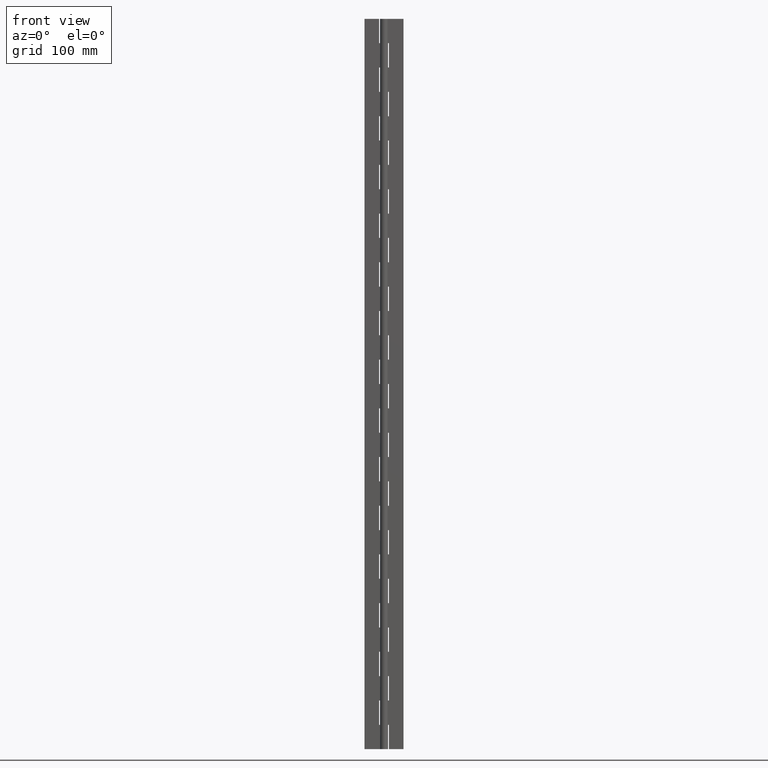
[diagram: clean part render]
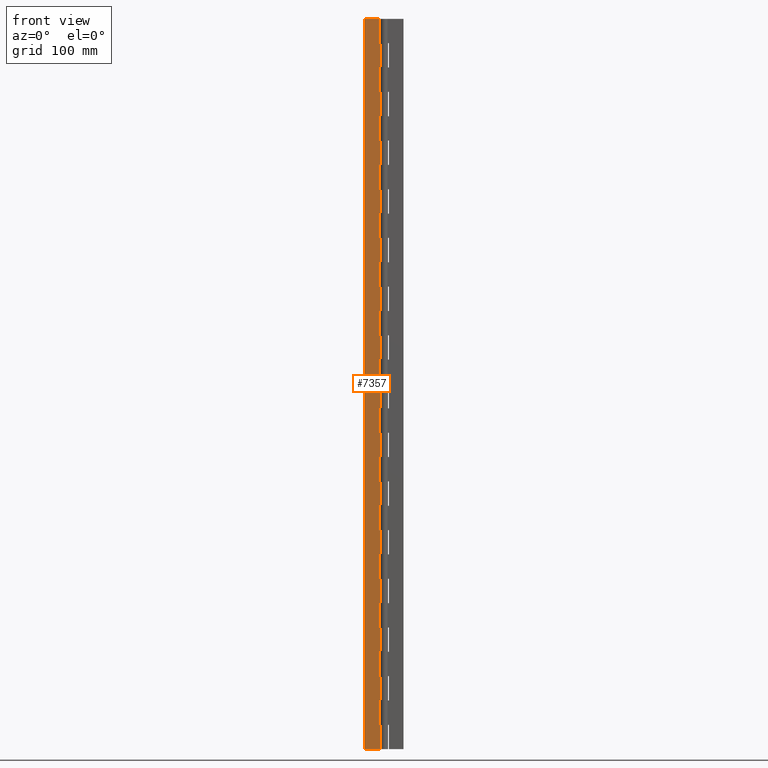
[diagram: same view with one face highlighted and labeled with its STEP entity id]
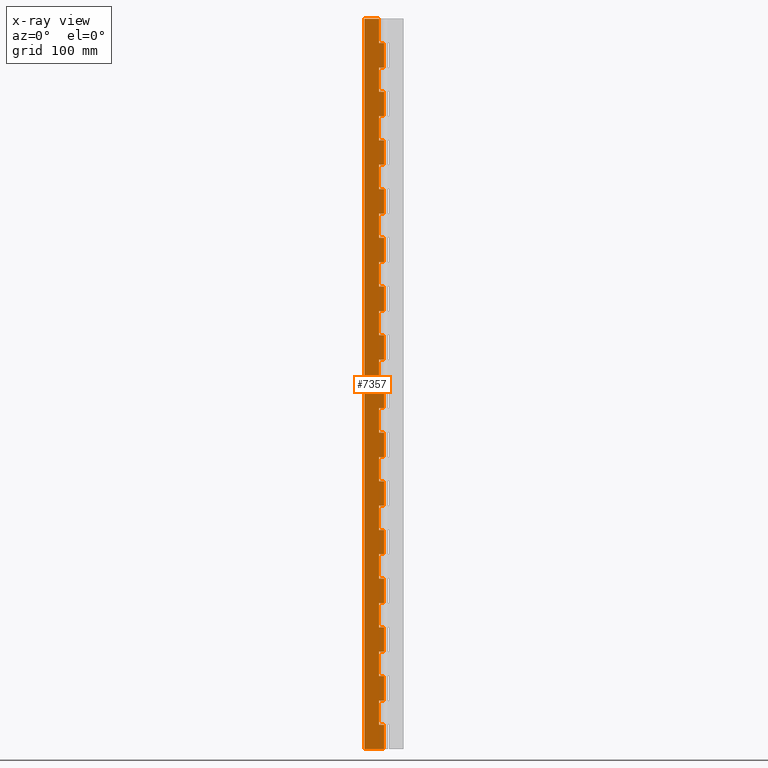
[diagram: x-ray of the same camera — body ghosted, the highlighted face saturated]
A machine part, front view. The second image highlights one B-rep face of the part: STEP entity #7357.
The next image is the same camera in x-ray: the body ghosted, the highlighted face saturated — about 0% of this face is hidden behind the body in this view.
In plain terms, the highlighted face is a freeform B-spline surface patch.
Its self-contained STEP definition (entity closure, byte-faithful):
#4497=CARTESIAN_POINT('',(-4.0,1.750000000000030,20.000021999999952));
#4498=VERTEX_POINT('',#4497);
#4504=CARTESIAN_POINT('',(0.0,1.750000000000000,20.000021999999952));
#4505=VERTEX_POINT('',#4504);
#4506=CARTESIAN_POINT('',(0.0,1.750000000000000,20.000021999999952));
#4507=CARTESIAN_POINT('',(-4.0,1.750000000000030,20.000021999999952));
#4508=QUASI_UNIFORM_CURVE('',1,(#4506,#4507),.UNSPECIFIED.,.F.,.U.);
#4509=EDGE_CURVE('',#4505,#4498,#4508,.T.);
#4575=CARTESIAN_POINT('',(0.0,1.750000000000000,40.000021999999952));
#4576=VERTEX_POINT('',#4575);
#4596=CARTESIAN_POINT('',(-4.0,1.750000000000030,40.000021999999952));
#4597=VERTEX_POINT('',#4596);
#4598=CARTESIAN_POINT('',(-4.0,1.750000000000030,40.000021999999952));
#4599=CARTESIAN_POINT('',(0.0,1.750000000000000,40.000021999999952));
#4600=QUASI_UNIFORM_CURVE('',1,(#4598,#4599),.UNSPECIFIED.,.F.,.U.);
#4601=EDGE_CURVE('',#4597,#4576,#4600,.T.);
#4630=CARTESIAN_POINT('',(-4.0,1.750000000000030,20.000021999999952));
#4631=CARTESIAN_POINT('',(-4.0,1.750000000000030,40.000021999999952));
#4632=QUASI_UNIFORM_CURVE('',1,(#4630,#4631),.UNSPECIFIED.,.F.,.U.);
#4633=EDGE_CURVE('',#4498,#4597,#4632,.T.);
#4673=CARTESIAN_POINT('',(-4.0,1.750000000000030,60.000022000000001));
#4674=VERTEX_POINT('',#4673);
#4680=CARTESIAN_POINT('',(0.0,1.750000000000000,60.000022000000001));
#4681=VERTEX_POINT('',#4680);
#4682=CARTESIAN_POINT('',(0.0,1.750000000000000,60.000022000000001));
#4683=CARTESIAN_POINT('',(-4.0,1.750000000000030,60.000022000000001));
#4684=QUASI_UNIFORM_CURVE('',1,(#4682,#4683),.UNSPECIFIED.,.F.,.U.);
#4685=EDGE_CURVE('',#4681,#4674,#4684,.T.);
#4751=CARTESIAN_POINT('',(0.0,1.750000000000000,80.000022000000001));
#4752=VERTEX_POINT('',#4751);
#4772=CARTESIAN_POINT('',(-4.0,1.750000000000030,80.000022000000001));
#4773=VERTEX_POINT('',#4772);
#4774=CARTESIAN_POINT('',(-4.0,1.750000000000030,80.000022000000001));
#4775=CARTESIAN_POINT('',(0.0,1.750000000000000,80.000022000000001));
#4776=QUASI_UNIFORM_CURVE('',1,(#4774,#4775),.UNSPECIFIED.,.F.,.U.);
#4777=EDGE_CURVE('',#4773,#4752,#4776,.T.);
#4806=CARTESIAN_POINT('',(-4.0,1.750000000000030,60.000022000000001));
#4807=CARTESIAN_POINT('',(-4.0,1.750000000000030,80.000022000000001));
#4808=QUASI_UNIFORM_CURVE('',1,(#4806,#4807),.UNSPECIFIED.,.F.,.U.);
#4809=EDGE_CURVE('',#4674,#4773,#4808,.T.);
#4849=CARTESIAN_POINT('',(-4.0,1.750000000000030,100.000022000000000));
#4850=VERTEX_POINT('',#4849);
#4856=CARTESIAN_POINT('',(0.0,1.750000000000000,100.000022000000000));
#4857=VERTEX_POINT('',#4856);
#4858=CARTESIAN_POINT('',(0.0,1.750000000000000,100.000022000000000));
#4859=CARTESIAN_POINT('',(-4.0,1.750000000000030,100.000022000000000));
#4860=QUASI_UNIFORM_CURVE('',1,(#4858,#4859),.UNSPECIFIED.,.F.,.U.);
#4861=EDGE_CURVE('',#4857,#4850,#4860,.T.);
#4927=CARTESIAN_POINT('',(0.0,1.750000000000000,120.000022000000000));
#4928=VERTEX_POINT('',#4927);
#4948=CARTESIAN_POINT('',(-4.0,1.750000000000030,120.000022000000000));
#4949=VERTEX_POINT('',#4948);
#4950=CARTESIAN_POINT('',(-4.0,1.750000000000030,120.000022000000000));
#4951=CARTESIAN_POINT('',(0.0,1.750000000000000,120.000022000000000));
#4952=QUASI_UNIFORM_CURVE('',1,(#4950,#4951),.UNSPECIFIED.,.F.,.U.);
#4953=EDGE_CURVE('',#4949,#4928,#4952,.T.);
#4982=CARTESIAN_POINT('',(-4.0,1.750000000000030,100.000022000000000));
#4983=CARTESIAN_POINT('',(-4.0,1.750000000000030,120.000022000000000));
#4984=QUASI_UNIFORM_CURVE('',1,(#4982,#4983),.UNSPECIFIED.,.F.,.U.);
#4985=EDGE_CURVE('',#4850,#4949,#4984,.T.);
#5025=CARTESIAN_POINT('',(-4.0,1.750000000000030,140.000022000000000));
#5026=VERTEX_POINT('',#5025);
#5032=CARTESIAN_POINT('',(0.0,1.750000000000000,140.000022000000000));
#5033=VERTEX_POINT('',#5032);
#5034=CARTESIAN_POINT('',(0.0,1.750000000000000,140.000022000000000));
#5035=CARTESIAN_POINT('',(-4.0,1.750000000000030,140.000022000000000));
#5036=QUASI_UNIFORM_CURVE('',1,(#5034,#5035),.UNSPECIFIED.,.F.,.U.);
#5037=EDGE_CURVE('',#5033,#5026,#5036,.T.);
#5103=CARTESIAN_POINT('',(0.0,1.750000000000000,160.000022000000000));
#5104=VERTEX_POINT('',#5103);
#5124=CARTESIAN_POINT('',(-4.0,1.750000000000030,160.000022000000000));
#5125=VERTEX_POINT('',#5124);
#5126=CARTESIAN_POINT('',(-4.0,1.750000000000030,160.000022000000000));
#5127=CARTESIAN_POINT('',(0.0,1.750000000000000,160.000022000000000));
#5128=QUASI_UNIFORM_CURVE('',1,(#5126,#5127),.UNSPECIFIED.,.F.,.U.);
#5129=EDGE_CURVE('',#5125,#5104,#5128,.T.);
#5158=CARTESIAN_POINT('',(-4.0,1.750000000000030,140.000022000000000));
#5159=CARTESIAN_POINT('',(-4.0,1.750000000000030,160.000022000000000));
#5160=QUASI_UNIFORM_CURVE('',1,(#5158,#5159),.UNSPECIFIED.,.F.,.U.);
#5161=EDGE_CURVE('',#5026,#5125,#5160,.T.);
#5201=CARTESIAN_POINT('',(-4.0,1.750000000000030,180.000022000000000));
#5202=VERTEX_POINT('',#5201);
#5208=CARTESIAN_POINT('',(0.0,1.750000000000000,180.000022000000000));
#5209=VERTEX_POINT('',#5208);
#5210=CARTESIAN_POINT('',(0.0,1.750000000000000,180.000022000000000));
#5211=CARTESIAN_POINT('',(-4.0,1.750000000000030,180.000022000000000));
#5212=QUASI_UNIFORM_CURVE('',1,(#5210,#5211),.UNSPECIFIED.,.F.,.U.);
#5213=EDGE_CURVE('',#5209,#5202,#5212,.T.);
#5279=CARTESIAN_POINT('',(0.0,1.750000000000000,200.000022000000000));
#5280=VERTEX_POINT('',#5279);
#5300=CARTESIAN_POINT('',(-4.0,1.750000000000030,200.000022000000000));
#5301=VERTEX_POINT('',#5300);
#5302=CARTESIAN_POINT('',(-4.0,1.750000000000030,200.000022000000000));
#5303=CARTESIAN_POINT('',(0.0,1.750000000000000,200.000022000000000));
#5304=QUASI_UNIFORM_CURVE('',1,(#5302,#5303),.UNSPECIFIED.,.F.,.U.);
#5305=EDGE_CURVE('',#5301,#5280,#5304,.T.);
#5334=CARTESIAN_POINT('',(-4.0,1.750000000000030,180.000022000000000));
#5335=CARTESIAN_POINT('',(-4.0,1.750000000000030,200.000022000000000));
#5336=QUASI_UNIFORM_CURVE('',1,(#5334,#5335),.UNSPECIFIED.,.F.,.U.);
#5337=EDGE_CURVE('',#5202,#5301,#5336,.T.);
#5377=CARTESIAN_POINT('',(-4.0,1.750000000000030,220.000022000000000));
#5378=VERTEX_POINT('',#5377);
#5384=CARTESIAN_POINT('',(0.0,1.750000000000000,220.000022000000000));
#5385=VERTEX_POINT('',#5384);
#5386=CARTESIAN_POINT('',(0.0,1.750000000000000,220.000022000000000));
#5387=CARTESIAN_POINT('',(-4.0,1.750000000000030,220.000022000000000));
#5388=QUASI_UNIFORM_CURVE('',1,(#5386,#5387),.UNSPECIFIED.,.F.,.U.);
#5389=EDGE_CURVE('',#5385,#5378,#5388,.T.);
#5455=CARTESIAN_POINT('',(0.0,1.750000000000000,240.000022000000000));
#5456=VERTEX_POINT('',#5455);
#5476=CARTESIAN_POINT('',(-4.0,1.750000000000030,240.000022000000000));
#5477=VERTEX_POINT('',#5476);
#5478=CARTESIAN_POINT('',(-4.0,1.750000000000030,240.000022000000000));
#5479=CARTESIAN_POINT('',(0.0,1.750000000000000,240.000022000000000));
#5480=QUASI_UNIFORM_CURVE('',1,(#5478,#5479),.UNSPECIFIED.,.F.,.U.);
#5481=EDGE_CURVE('',#5477,#5456,#5480,.T.);
#5510=CARTESIAN_POINT('',(-4.0,1.750000000000030,220.000022000000000));
#5511=CARTESIAN_POINT('',(-4.0,1.750000000000030,240.000022000000000));
#5512=QUASI_UNIFORM_CURVE('',1,(#5510,#5511),.UNSPECIFIED.,.F.,.U.);
#5513=EDGE_CURVE('',#5378,#5477,#5512,.T.);
#5553=CARTESIAN_POINT('',(-4.0,1.750000000000030,260.000022000000000));
#5554=VERTEX_POINT('',#5553);
#5560=CARTESIAN_POINT('',(0.0,1.750000000000000,260.000022000000000));
#5561=VERTEX_POINT('',#5560);
#5562=CARTESIAN_POINT('',(0.0,1.750000000000000,260.000022000000000));
#5563=CARTESIAN_POINT('',(-4.0,1.750000000000030,260.000022000000000));
#5564=QUASI_UNIFORM_CURVE('',1,(#5562,#5563),.UNSPECIFIED.,.F.,.U.);
#5565=EDGE_CURVE('',#5561,#5554,#5564,.T.);
#5631=CARTESIAN_POINT('',(0.0,1.750000000000000,280.000022000000000));
#5632=VERTEX_POINT('',#5631);
#5652=CARTESIAN_POINT('',(-4.0,1.750000000000030,280.000022000000000));
#5653=VERTEX_POINT('',#5652);
#5654=CARTESIAN_POINT('',(-4.0,1.750000000000030,280.000022000000000));
#5655=CARTESIAN_POINT('',(0.0,1.750000000000000,280.000022000000000));
#5656=QUASI_UNIFORM_CURVE('',1,(#5654,#5655),.UNSPECIFIED.,.F.,.U.);
#5657=EDGE_CURVE('',#5653,#5632,#5656,.T.);
#5686=CARTESIAN_POINT('',(-4.0,1.750000000000030,260.000022000000000));
#5687=CARTESIAN_POINT('',(-4.0,1.750000000000030,280.000022000000000));
#5688=QUASI_UNIFORM_CURVE('',1,(#5686,#5687),.UNSPECIFIED.,.F.,.U.);
#5689=EDGE_CURVE('',#5554,#5653,#5688,.T.);
#5729=CARTESIAN_POINT('',(-4.0,1.750000000000030,300.000022000000000));
#5730=VERTEX_POINT('',#5729);
#5736=CARTESIAN_POINT('',(0.0,1.750000000000000,300.000022000000000));
#5737=VERTEX_POINT('',#5736);
#5738=CARTESIAN_POINT('',(0.0,1.750000000000000,300.000022000000000));
#5739=CARTESIAN_POINT('',(-4.0,1.750000000000030,300.000022000000000));
#5740=QUASI_UNIFORM_CURVE('',1,(#5738,#5739),.UNSPECIFIED.,.F.,.U.);
#5741=EDGE_CURVE('',#5737,#5730,#5740,.T.);
#5807=CARTESIAN_POINT('',(0.0,1.750000000000000,320.000022000000000));
#5808=VERTEX_POINT('',#5807);
#5828=CARTESIAN_POINT('',(-4.0,1.750000000000030,320.000022000000000));
#5829=VERTEX_POINT('',#5828);
#5830=CARTESIAN_POINT('',(-4.0,1.750000000000030,320.000022000000000));
#5831=CARTESIAN_POINT('',(0.0,1.750000000000000,320.000022000000000));
#5832=QUASI_UNIFORM_CURVE('',1,(#5830,#5831),.UNSPECIFIED.,.F.,.U.);
#5833=EDGE_CURVE('',#5829,#5808,#5832,.T.);
#5862=CARTESIAN_POINT('',(-4.0,1.750000000000030,300.000022000000000));
#5863=CARTESIAN_POINT('',(-4.0,1.750000000000030,320.000022000000000));
#5864=QUASI_UNIFORM_CURVE('',1,(#5862,#5863),.UNSPECIFIED.,.F.,.U.);
#5865=EDGE_CURVE('',#5730,#5829,#5864,.T.);
#5905=CARTESIAN_POINT('',(-4.0,1.750000000000030,340.000022000000000));
#5906=VERTEX_POINT('',#5905);
#5912=CARTESIAN_POINT('',(0.0,1.750000000000000,340.000022000000000));
#5913=VERTEX_POINT('',#5912);
#5914=CARTESIAN_POINT('',(0.0,1.750000000000000,340.000022000000000));
#5915=CARTESIAN_POINT('',(-4.0,1.750000000000030,340.000022000000000));
#5916=QUASI_UNIFORM_CURVE('',1,(#5914,#5915),.UNSPECIFIED.,.F.,.U.);
#5917=EDGE_CURVE('',#5913,#5906,#5916,.T.);
#5983=CARTESIAN_POINT('',(0.0,1.750000000000000,360.000022000000000));
#5984=VERTEX_POINT('',#5983);
#6004=CARTESIAN_POINT('',(-4.0,1.750000000000030,360.000022000000000));
#6005=VERTEX_POINT('',#6004);
#6006=CARTESIAN_POINT('',(-4.0,1.750000000000030,360.000022000000000));
#6007=CARTESIAN_POINT('',(0.0,1.750000000000000,360.000022000000000));
#6008=QUASI_UNIFORM_CURVE('',1,(#6006,#6007),.UNSPECIFIED.,.F.,.U.);
#6009=EDGE_CURVE('',#6005,#5984,#6008,.T.);
#6038=CARTESIAN_POINT('',(-4.0,1.750000000000030,340.000022000000000));
#6039=CARTESIAN_POINT('',(-4.0,1.750000000000030,360.000022000000000));
#6040=QUASI_UNIFORM_CURVE('',1,(#6038,#6039),.UNSPECIFIED.,.F.,.U.);
#6041=EDGE_CURVE('',#5906,#6005,#6040,.T.);
#6081=CARTESIAN_POINT('',(-4.0,1.750000000000030,380.000022000000000));
#6082=VERTEX_POINT('',#6081);
#6088=CARTESIAN_POINT('',(0.0,1.750000000000000,380.000022000000000));
#6089=VERTEX_POINT('',#6088);
#6090=CARTESIAN_POINT('',(0.0,1.750000000000000,380.000022000000000));
#6091=CARTESIAN_POINT('',(-4.0,1.750000000000030,380.000022000000000));
#6092=QUASI_UNIFORM_CURVE('',1,(#6090,#6091),.UNSPECIFIED.,.F.,.U.);
#6093=EDGE_CURVE('',#6089,#6082,#6092,.T.);
#6159=CARTESIAN_POINT('',(0.0,1.750000000000000,400.000022000000000));
#6160=VERTEX_POINT('',#6159);
#6180=CARTESIAN_POINT('',(-4.0,1.750000000000030,400.000022000000000));
#6181=VERTEX_POINT('',#6180);
#6182=CARTESIAN_POINT('',(-4.0,1.750000000000030,400.000022000000000));
#6183=CARTESIAN_POINT('',(0.0,1.750000000000000,400.000022000000000));
#6184=QUASI_UNIFORM_CURVE('',1,(#6182,#6183),.UNSPECIFIED.,.F.,.U.);
#6185=EDGE_CURVE('',#6181,#6160,#6184,.T.);
#6214=CARTESIAN_POINT('',(-4.0,1.750000000000030,380.000022000000000));
#6215=CARTESIAN_POINT('',(-4.0,1.750000000000030,400.000022000000000));
#6216=QUASI_UNIFORM_CURVE('',1,(#6214,#6215),.UNSPECIFIED.,.F.,.U.);
#6217=EDGE_CURVE('',#6082,#6181,#6216,.T.);
#6257=CARTESIAN_POINT('',(-4.0,1.750000000000030,420.000021999999890));
#6258=VERTEX_POINT('',#6257);
#6264=CARTESIAN_POINT('',(0.0,1.750000000000000,420.000021999999890));
#6265=VERTEX_POINT('',#6264);
#6266=CARTESIAN_POINT('',(0.0,1.750000000000000,420.000021999999890));
#6267=CARTESIAN_POINT('',(-4.0,1.750000000000030,420.000021999999890));
#6268=QUASI_UNIFORM_CURVE('',1,(#6266,#6267),.UNSPECIFIED.,.F.,.U.);
#6269=EDGE_CURVE('',#6265,#6258,#6268,.T.);
#6335=CARTESIAN_POINT('',(0.0,1.750000000000000,440.000022000000000));
#6336=VERTEX_POINT('',#6335);
#6356=CARTESIAN_POINT('',(-4.0,1.750000000000030,440.000022000000000));
#6357=VERTEX_POINT('',#6356);
#6358=CARTESIAN_POINT('',(-4.0,1.750000000000030,440.000022000000000));
#6359=CARTESIAN_POINT('',(0.0,1.750000000000000,440.000022000000000));
#6360=QUASI_UNIFORM_CURVE('',1,(#6358,#6359),.UNSPECIFIED.,.F.,.U.);
#6361=EDGE_CURVE('',#6357,#6336,#6360,.T.);
#6390=CARTESIAN_POINT('',(-4.0,1.750000000000030,420.000021999999890));
#6391=CARTESIAN_POINT('',(-4.0,1.750000000000030,440.000022000000000));
#6392=QUASI_UNIFORM_CURVE('',1,(#6390,#6391),.UNSPECIFIED.,.F.,.U.);
#6393=EDGE_CURVE('',#6258,#6357,#6392,.T.);
#6433=CARTESIAN_POINT('',(-4.0,1.750000000000030,460.000022000000000));
#6434=VERTEX_POINT('',#6433);
#6440=CARTESIAN_POINT('',(0.0,1.750000000000000,460.000022000000000));
#6441=VERTEX_POINT('',#6440);
#6442=CARTESIAN_POINT('',(0.0,1.750000000000000,460.000022000000000));
#6443=CARTESIAN_POINT('',(-4.0,1.750000000000030,460.000022000000000));
#6444=QUASI_UNIFORM_CURVE('',1,(#6442,#6443),.UNSPECIFIED.,.F.,.U.);
#6445=EDGE_CURVE('',#6441,#6434,#6444,.T.);
#6511=CARTESIAN_POINT('',(0.0,1.750000000000000,480.000022000000000));
#6512=VERTEX_POINT('',#6511);
#6532=CARTESIAN_POINT('',(-4.0,1.750000000000030,480.000022000000000));
#6533=VERTEX_POINT('',#6532);
#6534=CARTESIAN_POINT('',(-4.0,1.750000000000030,480.000022000000000));
#6535=CARTESIAN_POINT('',(0.0,1.750000000000000,480.000022000000000));
#6536=QUASI_UNIFORM_CURVE('',1,(#6534,#6535),.UNSPECIFIED.,.F.,.U.);
#6537=EDGE_CURVE('',#6533,#6512,#6536,.T.);
#6566=CARTESIAN_POINT('',(-4.0,1.750000000000030,460.000022000000000));
#6567=CARTESIAN_POINT('',(-4.0,1.750000000000030,480.000022000000000));
#6568=QUASI_UNIFORM_CURVE('',1,(#6566,#6567),.UNSPECIFIED.,.F.,.U.);
#6569=EDGE_CURVE('',#6434,#6533,#6568,.T.);
#6609=CARTESIAN_POINT('',(-4.0,1.750000000000030,500.000022000000110));
#6610=VERTEX_POINT('',#6609);
#6616=CARTESIAN_POINT('',(0.0,1.750000000000000,500.000022000000110));
#6617=VERTEX_POINT('',#6616);
#6618=CARTESIAN_POINT('',(0.0,1.750000000000000,500.000022000000110));
#6619=CARTESIAN_POINT('',(-4.0,1.750000000000030,500.000022000000110));
#6620=QUASI_UNIFORM_CURVE('',1,(#6618,#6619),.UNSPECIFIED.,.F.,.U.);
#6621=EDGE_CURVE('',#6617,#6610,#6620,.T.);
#6687=CARTESIAN_POINT('',(0.0,1.750000000000000,520.000021999999940));
#6688=VERTEX_POINT('',#6687);
#6708=CARTESIAN_POINT('',(-4.0,1.750000000000030,520.000021999999940));
#6709=VERTEX_POINT('',#6708);
#6710=CARTESIAN_POINT('',(-4.0,1.750000000000030,520.000021999999940));
#6711=CARTESIAN_POINT('',(0.0,1.750000000000000,520.000021999999940));
#6712=QUASI_UNIFORM_CURVE('',1,(#6710,#6711),.UNSPECIFIED.,.F.,.U.);
#6713=EDGE_CURVE('',#6709,#6688,#6712,.T.);
#6742=CARTESIAN_POINT('',(-4.0,1.750000000000030,500.000022000000110));
#6743=CARTESIAN_POINT('',(-4.0,1.750000000000030,520.000021999999940));
#6744=QUASI_UNIFORM_CURVE('',1,(#6742,#6743),.UNSPECIFIED.,.F.,.U.);
#6745=EDGE_CURVE('',#6610,#6709,#6744,.T.);
#6757=CARTESIAN_POINT('',(0.0,1.750000000000000,540.000021999999940));
#6758=VERTEX_POINT('',#6757);
#6813=CARTESIAN_POINT('',(-4.0,1.750000000000030,540.000021999999940));
#6814=VERTEX_POINT('',#6813);
#6820=CARTESIAN_POINT('',(0.0,1.750000000000000,540.000021999999940));
#6821=CARTESIAN_POINT('',(-4.0,1.750000000000030,540.000021999999940));
#6822=QUASI_UNIFORM_CURVE('',1,(#6820,#6821),.UNSPECIFIED.,.F.,.U.);
#6823=EDGE_CURVE('',#6758,#6814,#6822,.T.);
#6833=CARTESIAN_POINT('',(-4.0,1.750000000000030,560.000021999999940));
#6834=VERTEX_POINT('',#6833);
#6877=CARTESIAN_POINT('',(0.0,1.750000000000000,560.000021999999940));
#6878=VERTEX_POINT('',#6877);
#6898=CARTESIAN_POINT('',(-4.0,1.750000000000030,560.000021999999940));
#6899=CARTESIAN_POINT('',(0.0,1.750000000000000,560.000021999999940));
#6900=QUASI_UNIFORM_CURVE('',1,(#6898,#6899),.UNSPECIFIED.,.F.,.U.);
#6901=EDGE_CURVE('',#6834,#6878,#6900,.T.);
#6918=CARTESIAN_POINT('',(-4.0,1.750000000000030,540.000021999999940));
#6919=CARTESIAN_POINT('',(-4.0,1.750000000000030,560.000021999999940));
#6920=QUASI_UNIFORM_CURVE('',1,(#6918,#6919),.UNSPECIFIED.,.F.,.U.);
#6921=EDGE_CURVE('',#6814,#6834,#6920,.T.);
#6931=CARTESIAN_POINT('',(-4.0,1.750000000000030,580.000022000000060));
#6932=VERTEX_POINT('',#6931);
#6947=CARTESIAN_POINT('',(-4.0,1.750000000000030,600.000022000000060));
#6948=VERTEX_POINT('',#6947);
#6954=CARTESIAN_POINT('',(-4.0,1.750000000000030,580.000022000000060));
#6955=CARTESIAN_POINT('',(-4.0,1.750000000000030,600.000022000000060));
#6956=QUASI_UNIFORM_CURVE('',1,(#6954,#6955),.UNSPECIFIED.,.F.,.U.);
#6957=EDGE_CURVE('',#6932,#6948,#6956,.T.);
#6969=CARTESIAN_POINT('',(0.0,1.750000000000000,580.000022000000060));
#6970=VERTEX_POINT('',#6969);
#7024=CARTESIAN_POINT('',(0.0,1.750000000000000,580.000022000000060));
#7025=CARTESIAN_POINT('',(-4.0,1.750000000000030,580.000022000000060));
#7026=QUASI_UNIFORM_CURVE('',1,(#7024,#7025),.UNSPECIFIED.,.F.,.U.);
#7027=EDGE_CURVE('',#6970,#6932,#7026,.T.);
#7074=CARTESIAN_POINT('',(0.0,1.750000000000000,0.0));
#7075=VERTEX_POINT('',#7074);
#7095=CARTESIAN_POINT('',(-16.0,1.750000000000000,0.0));
#7096=VERTEX_POINT('',#7095);
#7097=CARTESIAN_POINT('',(-16.0,1.750000000000000,0.0));
#7098=CARTESIAN_POINT('',(0.0,1.750000000000000,0.0));
#7099=QUASI_UNIFORM_CURVE('',1,(#7097,#7098),.UNSPECIFIED.,.F.,.U.);
#7100=EDGE_CURVE('',#7096,#7075,#7099,.T.);
#7115=CARTESIAN_POINT('',(-16.0,1.750000000000000,600.000022000000060));
#7116=VERTEX_POINT('',#7115);
#7117=CARTESIAN_POINT('',(-16.0,1.750000000000000,600.000022000000060));
#7118=CARTESIAN_POINT('',(-4.0,1.750000000000030,600.000022000000060));
#7119=QUASI_UNIFORM_CURVE('',1,(#7117,#7118),.UNSPECIFIED.,.F.,.U.);
#7120=EDGE_CURVE('',#7116,#6948,#7119,.T.);
#7219=CARTESIAN_POINT('',(0.0,1.750000000000000,20.000021999999952));
#7220=CARTESIAN_POINT('',(0.0,1.750000000000000,0.0));
#7221=QUASI_UNIFORM_CURVE('',1,(#7219,#7220),.UNSPECIFIED.,.F.,.U.);
#7222=EDGE_CURVE('',#4505,#7075,#7221,.T.);
#7228=CARTESIAN_POINT('',(-16.799199968988891,1.750000000000000,-29.969997792362008));
#7229=CARTESIAN_POINT('',(-16.799199968988891,1.750000000000000,629.969992970271050));
#7230=CARTESIAN_POINT('',(0.799200398142338,1.750000000000000,-29.969997792362008));
#7231=CARTESIAN_POINT('',(0.799200398142338,1.750000000000000,629.969992970271050));
#7232=B_SPLINE_SURFACE_WITH_KNOTS('',1,1,((#7228,#7230),(#7229,#7231)),.UNSPECIFIED.,.F.,.F.,.U.,(2,2),(2,2),(0.0,659.939990762633100),(0.0,17.598400367131230),.UNSPECIFIED.);
#7233=ORIENTED_EDGE('',*,*,#4633,.T.);
#7234=ORIENTED_EDGE('',*,*,#4601,.T.);
#7235=CARTESIAN_POINT('',(0.0,1.750000000000000,60.000022000000001));
#7236=CARTESIAN_POINT('',(0.0,1.750000000000000,40.000021999999952));
#7237=QUASI_UNIFORM_CURVE('',1,(#7235,#7236),.UNSPECIFIED.,.F.,.U.);
#7238=EDGE_CURVE('',#4681,#4576,#7237,.T.);
#7239=ORIENTED_EDGE('',*,*,#7238,.F.);
#7240=ORIENTED_EDGE('',*,*,#4685,.T.);
#7241=ORIENTED_EDGE('',*,*,#4809,.T.);
#7242=ORIENTED_EDGE('',*,*,#4777,.T.);
#7243=CARTESIAN_POINT('',(0.0,1.750000000000000,100.000022000000000));
#7244=CARTESIAN_POINT('',(0.0,1.750000000000000,80.000022000000001));
#7245=QUASI_UNIFORM_CURVE('',1,(#7243,#7244),.UNSPECIFIED.,.F.,.U.);
#7246=EDGE_CURVE('',#4857,#4752,#7245,.T.);
#7247=ORIENTED_EDGE('',*,*,#7246,.F.);
#7248=ORIENTED_EDGE('',*,*,#4861,.T.);
#7249=ORIENTED_EDGE('',*,*,#4985,.T.);
#7250=ORIENTED_EDGE('',*,*,#4953,.T.);
#7251=CARTESIAN_POINT('',(0.0,1.750000000000000,140.000022000000000));
#7252=CARTESIAN_POINT('',(0.0,1.750000000000000,120.000022000000000));
#7253=QUASI_UNIFORM_CURVE('',1,(#7251,#7252),.UNSPECIFIED.,.F.,.U.);
#7254=EDGE_CURVE('',#5033,#4928,#7253,.T.);
#7255=ORIENTED_EDGE('',*,*,#7254,.F.);
#7256=ORIENTED_EDGE('',*,*,#5037,.T.);
#7257=ORIENTED_EDGE('',*,*,#5161,.T.);
#7258=ORIENTED_EDGE('',*,*,#5129,.T.);
#7259=CARTESIAN_POINT('',(0.0,1.750000000000000,180.000022000000000));
#7260=CARTESIAN_POINT('',(0.0,1.750000000000000,160.000022000000000));
#7261=QUASI_UNIFORM_CURVE('',1,(#7259,#7260),.UNSPECIFIED.,.F.,.U.);
#7262=EDGE_CURVE('',#5209,#5104,#7261,.T.);
#7263=ORIENTED_EDGE('',*,*,#7262,.F.);
#7264=ORIENTED_EDGE('',*,*,#5213,.T.);
#7265=ORIENTED_EDGE('',*,*,#5337,.T.);
#7266=ORIENTED_EDGE('',*,*,#5305,.T.);
#7267=CARTESIAN_POINT('',(0.0,1.750000000000000,220.000022000000000));
#7268=CARTESIAN_POINT('',(0.0,1.750000000000000,200.000022000000000));
#7269=QUASI_UNIFORM_CURVE('',1,(#7267,#7268),.UNSPECIFIED.,.F.,.U.);
#7270=EDGE_CURVE('',#5385,#5280,#7269,.T.);
#7271=ORIENTED_EDGE('',*,*,#7270,.F.);
#7272=ORIENTED_EDGE('',*,*,#5389,.T.);
#7273=ORIENTED_EDGE('',*,*,#5513,.T.);
#7274=ORIENTED_EDGE('',*,*,#5481,.T.);
#7275=CARTESIAN_POINT('',(0.0,1.750000000000000,260.000022000000000));
#7276=CARTESIAN_POINT('',(0.0,1.750000000000000,240.000022000000000));
#7277=QUASI_UNIFORM_CURVE('',1,(#7275,#7276),.UNSPECIFIED.,.F.,.U.);
#7278=EDGE_CURVE('',#5561,#5456,#7277,.T.);
#7279=ORIENTED_EDGE('',*,*,#7278,.F.);
#7280=ORIENTED_EDGE('',*,*,#5565,.T.);
#7281=ORIENTED_EDGE('',*,*,#5689,.T.);
#7282=ORIENTED_EDGE('',*,*,#5657,.T.);
#7283=CARTESIAN_POINT('',(0.0,1.750000000000000,300.000022000000000));
#7284=CARTESIAN_POINT('',(0.0,1.750000000000000,280.000022000000000));
#7285=QUASI_UNIFORM_CURVE('',1,(#7283,#7284),.UNSPECIFIED.,.F.,.U.);
#7286=EDGE_CURVE('',#5737,#5632,#7285,.T.);
#7287=ORIENTED_EDGE('',*,*,#7286,.F.);
#7288=ORIENTED_EDGE('',*,*,#5741,.T.);
#7289=ORIENTED_EDGE('',*,*,#5865,.T.);
#7290=ORIENTED_EDGE('',*,*,#5833,.T.);
#7291=CARTESIAN_POINT('',(0.0,1.750000000000000,340.000022000000000));
#7292=CARTESIAN_POINT('',(0.0,1.750000000000000,320.000022000000000));
#7293=QUASI_UNIFORM_CURVE('',1,(#7291,#7292),.UNSPECIFIED.,.F.,.U.);
#7294=EDGE_CURVE('',#5913,#5808,#7293,.T.);
#7295=ORIENTED_EDGE('',*,*,#7294,.F.);
#7296=ORIENTED_EDGE('',*,*,#5917,.T.);
#7297=ORIENTED_EDGE('',*,*,#6041,.T.);
#7298=ORIENTED_EDGE('',*,*,#6009,.T.);
#7299=CARTESIAN_POINT('',(0.0,1.750000000000000,380.000022000000000));
#7300=CARTESIAN_POINT('',(0.0,1.750000000000000,360.000022000000000));
#7301=QUASI_UNIFORM_CURVE('',1,(#7299,#7300),.UNSPECIFIED.,.F.,.U.);
#7302=EDGE_CURVE('',#6089,#5984,#7301,.T.);
#7303=ORIENTED_EDGE('',*,*,#7302,.F.);
#7304=ORIENTED_EDGE('',*,*,#6093,.T.);
#7305=ORIENTED_EDGE('',*,*,#6217,.T.);
#7306=ORIENTED_EDGE('',*,*,#6185,.T.);
#7307=CARTESIAN_POINT('',(0.0,1.750000000000000,420.000021999999890));
#7308=CARTESIAN_POINT('',(0.0,1.750000000000000,400.000022000000000));
#7309=QUASI_UNIFORM_CURVE('',1,(#7307,#7308),.UNSPECIFIED.,.F.,.U.);
#7310=EDGE_CURVE('',#6265,#6160,#7309,.T.);
#7311=ORIENTED_EDGE('',*,*,#7310,.F.);
#7312=ORIENTED_EDGE('',*,*,#6269,.T.);
#7313=ORIENTED_EDGE('',*,*,#6393,.T.);
#7314=ORIENTED_EDGE('',*,*,#6361,.T.);
#7315=CARTESIAN_POINT('',(0.0,1.750000000000000,460.000022000000000));
#7316=CARTESIAN_POINT('',(0.0,1.750000000000000,440.000022000000000));
#7317=QUASI_UNIFORM_CURVE('',1,(#7315,#7316),.UNSPECIFIED.,.F.,.U.);
#7318=EDGE_CURVE('',#6441,#6336,#7317,.T.);
#7319=ORIENTED_EDGE('',*,*,#7318,.F.);
#7320=ORIENTED_EDGE('',*,*,#6445,.T.);
#7321=ORIENTED_EDGE('',*,*,#6569,.T.);
#7322=ORIENTED_EDGE('',*,*,#6537,.T.);
#7323=CARTESIAN_POINT('',(0.0,1.750000000000000,500.000022000000110));
#7324=CARTESIAN_POINT('',(0.0,1.750000000000000,480.000022000000000));
#7325=QUASI_UNIFORM_CURVE('',1,(#7323,#7324),.UNSPECIFIED.,.F.,.U.);
#7326=EDGE_CURVE('',#6617,#6512,#7325,.T.);
#7327=ORIENTED_EDGE('',*,*,#7326,.F.);
#7328=ORIENTED_EDGE('',*,*,#6621,.T.);
#7329=ORIENTED_EDGE('',*,*,#6745,.T.);
#7330=ORIENTED_EDGE('',*,*,#6713,.T.);
#7331=CARTESIAN_POINT('',(0.0,1.750000000000000,540.000021999999940));
#7332=CARTESIAN_POINT('',(0.0,1.750000000000000,520.000021999999940));
#7333=QUASI_UNIFORM_CURVE('',1,(#7331,#7332),.UNSPECIFIED.,.F.,.U.);
#7334=EDGE_CURVE('',#6758,#6688,#7333,.T.);
#7335=ORIENTED_EDGE('',*,*,#7334,.F.);
#7336=ORIENTED_EDGE('',*,*,#6823,.T.);
#7337=ORIENTED_EDGE('',*,*,#6921,.T.);
#7338=ORIENTED_EDGE('',*,*,#6901,.T.);
#7339=CARTESIAN_POINT('',(0.0,1.750000000000000,580.000022000000060));
#7340=CARTESIAN_POINT('',(0.0,1.750000000000000,560.000021999999940));
#7341=QUASI_UNIFORM_CURVE('',1,(#7339,#7340),.UNSPECIFIED.,.F.,.U.);
#7342=EDGE_CURVE('',#6970,#6878,#7341,.T.);
#7343=ORIENTED_EDGE('',*,*,#7342,.F.);
#7344=ORIENTED_EDGE('',*,*,#7027,.T.);
#7345=ORIENTED_EDGE('',*,*,#6957,.T.);
#7346=ORIENTED_EDGE('',*,*,#7120,.F.);
#7347=CARTESIAN_POINT('',(-16.0,1.750000000000000,600.000022000000060));
#7348=CARTESIAN_POINT('',(-16.0,1.750000000000000,0.0));
#7349=QUASI_UNIFORM_CURVE('',1,(#7347,#7348),.UNSPECIFIED.,.F.,.U.);
#7350=EDGE_CURVE('',#7116,#7096,#7349,.T.);
#7351=ORIENTED_EDGE('',*,*,#7350,.T.);
#7352=ORIENTED_EDGE('',*,*,#7100,.T.);
#7353=ORIENTED_EDGE('',*,*,#7222,.F.);
#7354=ORIENTED_EDGE('',*,*,#4509,.T.);
#7355=EDGE_LOOP('',(#7233,#7234,#7239,#7240,#7241,#7242,#7247,#7248,#7249,#7250,#7255,#7256,#7257,#7258,#7263,#7264,#7265,#7266,#7271,#7272,#7273,#7274,#7279,#7280,#7281,#7282,#7287,#7288,#7289,#7290,#7295,#7296,#7297,#7298,#7303,#7304,#7305,#7306,#7311,#7312,#7313,#7314,#7319,#7320,#7321,#7322,#7327,#7328,#7329,#7330,#7335,#7336,#7337,#7338,#7343,#7344,#7345,#7346,#7351,#7352,#7353,#7354));
#7356=FACE_OUTER_BOUND('',#7355,.T.);
#7357=ADVANCED_FACE('',(#7356),#7232,.F.);